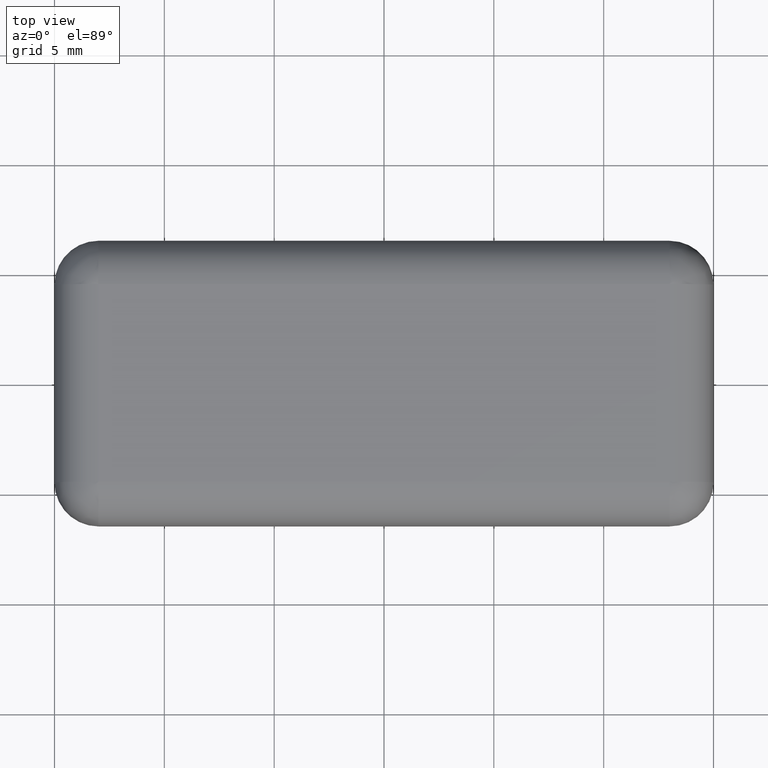
[diagram: clean part render]
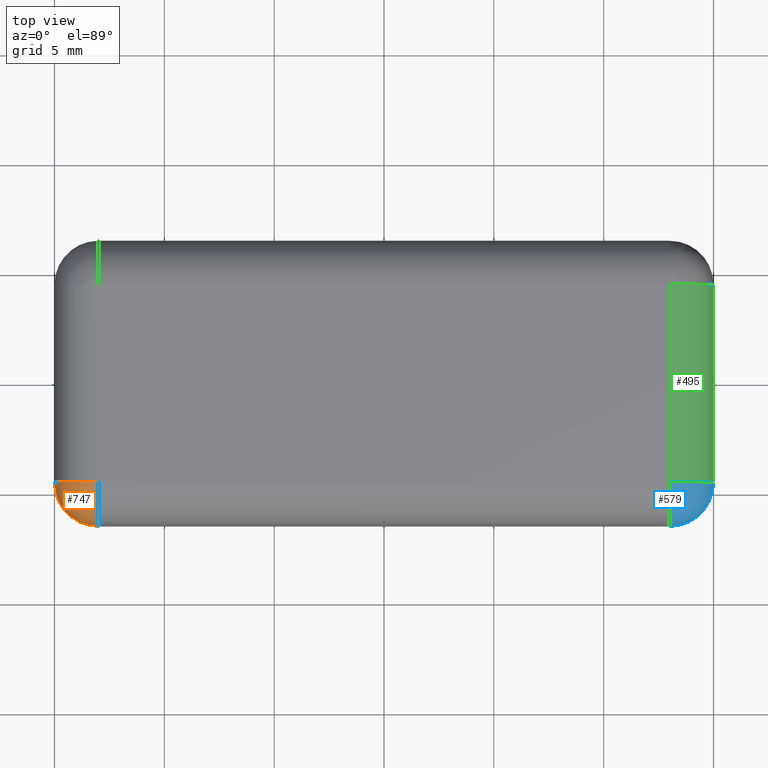
[diagram: same view with three faces highlighted in distinct colors, each labeled with its STEP entity id]
A machine part, top view with three faces highlighted in distinct colors.
Their STEP definitions:

[orange] entity #747 — the highlighted face is a freeform B-spline surface patch.
#7=CARTESIAN_POINT('',(-12.999999999999879,-4.500000000000000,2.300000000000000));
#8=VERTEX_POINT('',#7);
#265=CARTESIAN_POINT('',(-14.999999999999879,-4.500000000000000,0.300000000000000));
#266=VERTEX_POINT('',#265);
#267=CARTESIAN_POINT('',(-12.999999999999879,-6.500000000000000,0.300000000000000));
#268=VERTEX_POINT('',#267);
#269=CARTESIAN_POINT('',(-12.999999999999879,-4.500000000000000,0.300000000000000));
#270=DIRECTION('',(0.0,0.0,1.0));
#271=DIRECTION('',(0.0,-1.0,0.0));
#272=AXIS2_PLACEMENT_3D('',#269,#270,#271);
#273=CIRCLE('',#272,2.0);
#274=EDGE_CURVE('',#266,#268,#273,.T.);
#374=CARTESIAN_POINT('',(-12.999999999999879,-4.500000000000000,0.300000000000000));
#375=DIRECTION('',(0.0,-1.0,0.0));
#376=DIRECTION('',(-1.0,0.0,5.551115E-017));
#377=AXIS2_PLACEMENT_3D('',#374,#375,#376);
#378=CIRCLE('',#377,2.0);
#379=EDGE_CURVE('',#8,#266,#378,.T.);
#448=CARTESIAN_POINT('',(-12.999999999999879,-4.500000000000000,0.300000000000000));
#449=DIRECTION('',(1.0,0.0,0.0));
#450=DIRECTION('',(0.0,-1.0,5.551115E-017));
#451=AXIS2_PLACEMENT_3D('',#448,#449,#450);
#452=CIRCLE('',#451,2.0);
#453=EDGE_CURVE('',#8,#268,#452,.T.);
#664=CARTESIAN_POINT('',(-12.999999999999879,-4.500000000000000,2.300000000000000));
#665=CARTESIAN_POINT('',(-12.999999999999879,-4.500000000000000,2.300000000000000));
#666=CARTESIAN_POINT('',(-12.999999999999881,-4.500000000000000,2.300000000000000));
#667=CARTESIAN_POINT('',(-12.999999999999876,-4.499999999999999,2.299999999999999));
#668=CARTESIAN_POINT('',(-12.999999999999886,-4.500000000000001,2.300000000000000));
#669=CARTESIAN_POINT('',(-12.999999999999879,-4.500000000000000,2.300000000000000));
#670=CARTESIAN_POINT('',(-12.999999999999879,-4.500000000000000,2.300000000000000));
#671=CARTESIAN_POINT('',(-13.065423565769770,-4.500000000000000,2.299999999999999));
#672=CARTESIAN_POINT('',(-13.059997664538463,-4.505426460326894,2.300000453920654));
#673=CARTESIAN_POINT('',(-13.049143002019386,-4.516328993763035,2.300002385769376));
#674=CARTESIAN_POINT('',(-13.032774361357676,-4.532774361357801,2.300003555523811));
#675=CARTESIAN_POINT('',(-13.016328993762921,-4.549143002019507,2.300002385769376));
#676=CARTESIAN_POINT('',(-13.005426460326772,-4.559997664538583,2.300000453920656));
#677=CARTESIAN_POINT('',(-12.999999999999879,-4.565423565769891,2.300000000000001));
#678=CARTESIAN_POINT('',(-13.196753935604393,-4.499999999999999,2.293541209028191));
#679=CARTESIAN_POINT('',(-13.180344225089838,-4.516406829329166,2.294622280497522));
#680=CARTESIAN_POINT('',(-13.147527305120246,-4.549197959205632,2.296241293834771));
#681=CARTESIAN_POINT('',(-13.098344225327970,-4.598344225328102,2.297050195276508));
#682=CARTESIAN_POINT('',(-13.049197959205516,-4.647527305120370,2.296241293834771));
#683=CARTESIAN_POINT('',(-13.016406829329046,-4.680344225089959,2.294622280497521));
#684=CARTESIAN_POINT('',(-12.999999999999879,-4.696753935604516,2.293541209028190));
#685=CARTESIAN_POINT('',(-13.457444845403339,-4.500000000000002,2.254784155391458));
#686=CARTESIAN_POINT('',(-13.420195268760189,-4.538536273443080,2.262243085621857));
#687=CARTESIAN_POINT('',(-13.345031016592017,-4.615644857474894,2.273453728430770));
#688=CARTESIAN_POINT('',(-13.230831085410147,-4.730831085410262,2.279064616325387));
#689=CARTESIAN_POINT('',(-13.115644857474779,-4.845031016592138,2.273453728430771));
#690=CARTESIAN_POINT('',(-13.038536273442960,-4.920195268760311,2.262243085621858));
#691=CARTESIAN_POINT('',(-12.999999999999881,-4.957444845403460,2.254784155391458));
#692=CARTESIAN_POINT('',(-13.911269959842258,-4.499999999999998,2.116522979621471));
#693=CARTESIAN_POINT('',(-13.842108322795054,-4.579285305438411,2.145813898068745));
#694=CARTESIAN_POINT('',(-13.698614438266663,-4.738029025944689,2.189966036670723));
#695=CARTESIAN_POINT('',(-13.472139321551360,-4.972139321551490,2.212096054712062));
#696=CARTESIAN_POINT('',(-13.238029025944574,-5.198614438266791,2.189966036670722));
#697=CARTESIAN_POINT('',(-13.079285305438290,-5.342108322795179,2.145813898068744));
#698=CARTESIAN_POINT('',(-12.999999999999874,-5.411269959842382,2.116522979621470));
#699=CARTESIAN_POINT('',(-14.487326469838175,-4.500000000000003,1.716631820898720));
#700=CARTESIAN_POINT('',(-14.406237011464624,-4.645470102214478,1.797898286348174));
#701=CARTESIAN_POINT('',(-14.212330614062864,-4.937617342443698,1.923352542653772));
#702=CARTESIAN_POINT('',(-13.849737983433005,-5.349737983433125,1.986985818383675));
#703=CARTESIAN_POINT('',(-13.437617342443584,-5.712330614062981,1.923352542653774));
#704=CARTESIAN_POINT('',(-13.145470102214363,-5.906237011464738,1.797898286348174));
#705=CARTESIAN_POINT('',(-12.999999999999885,-5.987326469838289,1.716631820898720));
#706=CARTESIAN_POINT('',(-14.832793466402146,-4.499999999999997,1.165600782644201));
#707=CARTESIAN_POINT('',(-14.794453312197565,-4.714595861394125,1.256848347895916));
#708=CARTESIAN_POINT('',(-14.641901925898910,-5.147444550914125,1.402814264865777));
#709=CARTESIAN_POINT('',(-14.216882559811253,-5.716882559811378,1.478258450321354));
#710=CARTESIAN_POINT('',(-13.647444550913997,-6.141901925899035,1.402814264865776));
#711=CARTESIAN_POINT('',(-13.214595861393997,-6.294453312197689,1.256848347895916));
#712=CARTESIAN_POINT('',(-12.999999999999877,-6.332793466402271,1.165600782644201));
#713=CARTESIAN_POINT('',(-14.956005886180133,-4.500000000000002,0.750211309209944));
#714=CARTESIAN_POINT('',(-14.944956999088824,-4.747477651187074,0.805652908600539));
#715=CARTESIAN_POINT('',(-14.826586416565604,-5.247560914114287,0.895273656900097));
#716=CARTESIAN_POINT('',(-14.386217743852953,-5.886217743853067,0.941859661578889));
#717=CARTESIAN_POINT('',(-13.747560914114167,-6.326586416565728,0.895273656900098));
#718=CARTESIAN_POINT('',(-13.247477651186959,-6.444956999088943,0.805652908600539));
#719=CARTESIAN_POINT('',(-12.999999999999879,-6.456005886180252,0.750211309209944));
#720=CARTESIAN_POINT('',(-14.993661319821806,-4.499999999999998,0.495223121220345));
#721=CARTESIAN_POINT('',(-14.991982559340105,-4.758252333117635,0.520664188858249));
#722=CARTESIAN_POINT('',(-14.885698245773250,-5.280340307557595,0.561919473413235));
#723=CARTESIAN_POINT('',(-14.441235976494536,-5.941235976494662,0.583401434977066));
#724=CARTESIAN_POINT('',(-13.780340307557482,-6.385698245773376,0.561919473413235));
#725=CARTESIAN_POINT('',(-13.258252333117511,-6.491982559340224,0.520664188858249));
#726=CARTESIAN_POINT('',(-12.999999999999879,-6.493661319821928,0.495223121220345));
#727=CARTESIAN_POINT('',(-14.999999999999877,-4.500000000000000,0.365423565769891));
#728=CARTESIAN_POINT('',(-15.000002776736681,-4.760091329829997,0.373827648895719));
#729=CARTESIAN_POINT('',(-14.895937341933307,-5.286020490503399,0.387462853122221));
#730=CARTESIAN_POINT('',(-14.450827323400231,-5.950827323400354,0.394563633378272));
#731=CARTESIAN_POINT('',(-13.786020490503283,-6.395937341933427,0.387462853122221));
#732=CARTESIAN_POINT('',(-13.260091329829876,-6.500002776736805,0.373827648895719));
#733=CARTESIAN_POINT('',(-12.999999999999879,-6.500000000000000,0.365423565769891));
#734=CARTESIAN_POINT('',(-14.999999999999879,-4.500000000000000,0.300000000000000));
#735=CARTESIAN_POINT('',(-14.999999999999879,-4.760120429354838,0.300000000000000));
#736=CARTESIAN_POINT('',(-14.895922447768321,-5.286055634686549,0.300000000000000));
#737=CARTESIAN_POINT('',(-14.450825822945774,-5.950825822945895,0.300000000000000));
#738=CARTESIAN_POINT('',(-13.786055634686434,-6.395922447768443,0.300000000000000));
#739=CARTESIAN_POINT('',(-13.260120429354718,-6.500000000000000,0.300000000000000));
#740=CARTESIAN_POINT('',(-12.999999999999879,-6.500000000000000,0.300000000000000));
#741=B_SPLINE_SURFACE_WITH_KNOTS('',3,3,((#664,#671,#678,#685,#692,#699,#706,#713,#720,#727,#734),(#665,#672,#679,#686,#693,#700,#707,#714,#721,#728,#735),(#666,#673,#680,#687,#694,#701,#708,#715,#722,#729,#736),(#667,#674,#681,#688,#695,#702,#709,#716,#723,#730,#737),(#668,#675,#682,#689,#696,#703,#710,#717,#724,#731,#738),(#669,#676,#683,#690,#697,#704,#711,#718,#725,#732,#739),(#670,#677,#684,#691,#698,#705,#712,#719,#726,#733,#740)),.UNSPECIFIED.,.F.,.F.,.U.,(4,1,1,1,4),(4,1,1,1,1,1,1,1,4),(0.0,0.456884819279444,0.913769638558888,1.370654457838333,1.827539277117777),(0.0,0.168450816328602,0.337531680241882,0.679863139932531,1.399784191480694,2.210909377927191,2.661173399679213,2.894682586365700,3.130782840615567),.UNSPECIFIED.);
#742=ORIENTED_EDGE('',*,*,#453,.F.);
#743=ORIENTED_EDGE('',*,*,#379,.T.);
#744=ORIENTED_EDGE('',*,*,#274,.T.);
#745=EDGE_LOOP('',(#742,#743,#744));
#746=FACE_OUTER_BOUND('',#745,.T.);
#747=ADVANCED_FACE('',(#746),#741,.F.);

[blue] entity #579 — the highlighted face is a freeform B-spline surface patch.
#9=CARTESIAN_POINT('',(13.000000000000110,-4.500000000000000,2.300000000000000));
#10=VERTEX_POINT('',#9);
#329=CARTESIAN_POINT('',(15.000000000000110,-4.500000000000000,0.300000000000000));
#330=VERTEX_POINT('',#329);
#337=CARTESIAN_POINT('',(13.000000000000110,-6.500000000000000,0.300000000000000));
#338=VERTEX_POINT('',#337);
#339=CARTESIAN_POINT('',(13.000000000000110,-4.500000000000000,0.300000000000000));
#340=DIRECTION('',(0.0,0.0,1.0));
#341=DIRECTION('',(1.0,0.0,0.0));
#342=AXIS2_PLACEMENT_3D('',#339,#340,#341);
#343=CIRCLE('',#342,2.0);
#344=EDGE_CURVE('',#338,#330,#343,.T.);
#456=CARTESIAN_POINT('',(13.000000000000110,-4.500000000000000,0.300000000000000));
#457=DIRECTION('',(1.0,0.0,0.0));
#458=DIRECTION('',(0.0,-1.0,5.551115E-017));
#459=AXIS2_PLACEMENT_3D('',#456,#457,#458);
#460=CIRCLE('',#459,2.0);
#461=EDGE_CURVE('',#10,#338,#460,.T.);
#472=CARTESIAN_POINT('',(13.000000000000110,-4.500000000000000,0.300000000000000));
#473=DIRECTION('',(0.0,1.0,0.0));
#474=DIRECTION('',(1.0,0.0,5.551115E-017));
#475=AXIS2_PLACEMENT_3D('',#472,#473,#474);
#476=CIRCLE('',#475,2.0);
#477=EDGE_CURVE('',#10,#330,#476,.T.);
#496=CARTESIAN_POINT('',(13.000000000000110,-4.500000000000000,2.300000000000000));
#497=CARTESIAN_POINT('',(13.000000000000110,-4.500000000000000,2.300000000000000));
#498=CARTESIAN_POINT('',(13.000000000000115,-4.500000000000002,2.300000000000001));
#499=CARTESIAN_POINT('',(13.000000000000110,-4.500000000000000,2.300000000000000));
#500=CARTESIAN_POINT('',(13.000000000000110,-4.500000000000000,2.300000000000000));
#501=CARTESIAN_POINT('',(13.000000000000110,-4.499999999999999,2.300000000000000));
#502=CARTESIAN_POINT('',(13.000000000000110,-4.500000000000000,2.300000000000000));
#503=CARTESIAN_POINT('',(13.000000000000110,-4.565423565769891,2.300000000000001));
#504=CARTESIAN_POINT('',(13.005426460327003,-4.559997664538583,2.300000453920655));
#505=CARTESIAN_POINT('',(13.016328993763150,-4.549143002019507,2.300002385769371));
#506=CARTESIAN_POINT('',(13.032774361357911,-4.532774361357802,2.300003555523812));
#507=CARTESIAN_POINT('',(13.049143002019617,-4.516328993763034,2.300002385769375));
#508=CARTESIAN_POINT('',(13.059997664538693,-4.505426460326894,2.300000453920658));
#509=CARTESIAN_POINT('',(13.065423565770001,-4.500000000000000,2.300000000000004));
#510=CARTESIAN_POINT('',(13.000000000000110,-4.696753935604516,2.293541209028190));
#511=CARTESIAN_POINT('',(13.016406829329274,-4.680344225089959,2.294622280497522));
#512=CARTESIAN_POINT('',(13.049197959205747,-4.647527305120372,2.296241293834774));
#513=CARTESIAN_POINT('',(13.098344225328203,-4.598344225328100,2.297050195276507));
#514=CARTESIAN_POINT('',(13.147527305120487,-4.549197959205634,2.296241293834771));
#515=CARTESIAN_POINT('',(13.180344225090071,-4.516406829329166,2.294622280497520));
#516=CARTESIAN_POINT('',(13.196753935604628,-4.499999999999999,2.293541209028189));
#517=CARTESIAN_POINT('',(13.000000000000114,-4.957444845403460,2.254784155391458));
#518=CARTESIAN_POINT('',(13.038536273443192,-4.920195268760311,2.262243085621857));
#519=CARTESIAN_POINT('',(13.115644857475006,-4.845031016592134,2.273453728430769));
#520=CARTESIAN_POINT('',(13.230831085410387,-4.730831085410267,2.279064616325389));
#521=CARTESIAN_POINT('',(13.345031016592234,-4.615644857474893,2.273453728430769));
#522=CARTESIAN_POINT('',(13.420195268760423,-4.538536273443080,2.262243085621859));
#523=CARTESIAN_POINT('',(13.457444845403568,-4.500000000000002,2.254784155391459));
#524=CARTESIAN_POINT('',(13.000000000000105,-5.411269959842382,2.116522979621470));
#525=CARTESIAN_POINT('',(13.079285305438521,-5.342108322795179,2.145813898068746));
#526=CARTESIAN_POINT('',(13.238029025944801,-5.198614438266795,2.189966036670724));
#527=CARTESIAN_POINT('',(13.472139321551586,-4.972139321551488,2.212096054712062));
#528=CARTESIAN_POINT('',(13.698614438266908,-4.738029025944691,2.189966036670723));
#529=CARTESIAN_POINT('',(13.842108322795283,-4.579285305438411,2.145813898068744));
#530=CARTESIAN_POINT('',(13.911269959842492,-4.499999999999998,2.116522979621470));
#531=CARTESIAN_POINT('',(13.000000000000112,-5.987326469838288,1.716631820898719));
#532=CARTESIAN_POINT('',(13.145470102214585,-5.906237011464735,1.797898286348173));
#533=CARTESIAN_POINT('',(13.437617342443811,-5.712330614062974,1.923352542653772));
#534=CARTESIAN_POINT('',(13.849737983433240,-5.349737983433126,1.986985818383675));
#535=CARTESIAN_POINT('',(14.212330614063081,-4.937617342443696,1.923352542653772));
#536=CARTESIAN_POINT('',(14.406237011464849,-4.645470102214476,1.797898286348174));
#537=CARTESIAN_POINT('',(14.487326469838395,-4.500000000000001,1.716631820898720));
#538=CARTESIAN_POINT('',(13.000000000000108,-6.332793466402271,1.165600782644201));
#539=CARTESIAN_POINT('',(13.214595861394233,-6.294453312197689,1.256848347895917));
#540=CARTESIAN_POINT('',(13.647444550914235,-6.141901925899036,1.402814264865778));
#541=CARTESIAN_POINT('',(14.216882559811484,-5.716882559811383,1.478258450321355));
#542=CARTESIAN_POINT('',(14.641901925899148,-5.147444550914121,1.402814264865777));
#543=CARTESIAN_POINT('',(14.794453312197804,-4.714595861394125,1.256848347895917));
#544=CARTESIAN_POINT('',(14.832793466402387,-4.500000000000000,1.165600782644201));
#545=CARTESIAN_POINT('',(13.000000000000114,-6.456005886180253,0.750211309209944));
#546=CARTESIAN_POINT('',(13.247477651187189,-6.444956999088944,0.805652908600539));
#547=CARTESIAN_POINT('',(13.747560914114402,-6.326586416565727,0.895273656900097));
#548=CARTESIAN_POINT('',(14.386217743853182,-5.886217743853065,0.941859661578889));
#549=CARTESIAN_POINT('',(14.826586416565835,-5.247560914114290,0.895273656900097));
#550=CARTESIAN_POINT('',(14.944956999089053,-4.747477651187076,0.805652908600539));
#551=CARTESIAN_POINT('',(14.956005886180360,-4.500000000000001,0.750211309209944));
#552=CARTESIAN_POINT('',(13.000000000000108,-6.493661319821928,0.495223121220345));
#553=CARTESIAN_POINT('',(13.258252333117746,-6.491982559340226,0.520664188858249));
#554=CARTESIAN_POINT('',(13.780340307557715,-6.385698245773376,0.561919473413236));
#555=CARTESIAN_POINT('',(14.441235976494772,-5.941235976494666,0.583401434977066));
#556=CARTESIAN_POINT('',(14.885698245773487,-5.280340307557593,0.561919473413235));
#557=CARTESIAN_POINT('',(14.991982559340336,-4.758252333117635,0.520664188858249));
#558=CARTESIAN_POINT('',(14.993661319822042,-4.500000000000000,0.495223121220345));
#559=CARTESIAN_POINT('',(13.000000000000110,-6.500000000000000,0.365423565769891));
#560=CARTESIAN_POINT('',(13.260091329830107,-6.500002776736806,0.373827648895719));
#561=CARTESIAN_POINT('',(13.786020490503516,-6.395937341933427,0.387462853122221));
#562=CARTESIAN_POINT('',(14.450827323400462,-5.950827323400355,0.394563633378272));
#563=CARTESIAN_POINT('',(14.895937341933546,-5.286020490503401,0.387462853122221));
#564=CARTESIAN_POINT('',(15.000002776736917,-4.760091329829998,0.373827648895719));
#565=CARTESIAN_POINT('',(15.000000000000114,-4.500000000000000,0.365423565769891));
#566=CARTESIAN_POINT('',(13.000000000000110,-6.500000000000000,0.300000000000000));
#567=CARTESIAN_POINT('',(13.260120429354949,-6.500000000000000,0.300000000000000));
#568=CARTESIAN_POINT('',(13.786055634686665,-6.395922447768443,0.300000000000000));
#569=CARTESIAN_POINT('',(14.450825822946005,-5.950825822945896,0.300000000000000));
#570=CARTESIAN_POINT('',(14.895922447768553,-5.286055634686550,0.300000000000000));
#571=CARTESIAN_POINT('',(15.000000000000110,-4.760120429354838,0.300000000000000));
#572=CARTESIAN_POINT('',(15.000000000000110,-4.500000000000000,0.300000000000000));
#573=B_SPLINE_SURFACE_WITH_KNOTS('',3,3,((#496,#503,#510,#517,#524,#531,#538,#545,#552,#559,#566),(#497,#504,#511,#518,#525,#532,#539,#546,#553,#560,#567),(#498,#505,#512,#519,#526,#533,#540,#547,#554,#561,#568),(#499,#506,#513,#520,#527,#534,#541,#548,#555,#562,#569),(#500,#507,#514,#521,#528,#535,#542,#549,#556,#563,#570),(#501,#508,#515,#522,#529,#536,#543,#550,#557,#564,#571),(#502,#509,#516,#523,#530,#537,#544,#551,#558,#565,#572)),.UNSPECIFIED.,.F.,.F.,.U.,(4,1,1,1,4),(4,1,1,1,1,1,1,1,4),(0.0,0.456884819279444,0.913769638558888,1.370654457838332,1.827539277117777),(0.0,0.168450816328602,0.337531680241882,0.679863139932531,1.399784191480694,2.210909377927192,2.661173399679213,2.894682586365700,3.130782840615567),.UNSPECIFIED.);
#574=ORIENTED_EDGE('',*,*,#477,.F.);
#575=ORIENTED_EDGE('',*,*,#461,.T.);
#576=ORIENTED_EDGE('',*,*,#344,.T.);
#577=EDGE_LOOP('',(#574,#575,#576));
#578=FACE_OUTER_BOUND('',#577,.T.);
#579=ADVANCED_FACE('',(#578),#573,.F.);

[green] entity #495 — the highlighted cylindrical surface (partial cylindrical patch) has radius 2 mm, axis along (0, -1, 0).
#9=CARTESIAN_POINT('',(13.000000000000110,-4.500000000000000,2.300000000000000));
#10=VERTEX_POINT('',#9);
#17=CARTESIAN_POINT('',(13.000000000000110,4.500000000000000,2.300000000000000));
#18=VERTEX_POINT('',#17);
#19=CARTESIAN_POINT('',(13.000000000000110,-4.500000000000000,2.300000000000000));
#20=DIRECTION('',(0.0,1.0,0.0));
#21=VECTOR('',#20,9.0);
#22=LINE('',#19,#21);
#23=EDGE_CURVE('',#10,#18,#22,.T.);
#305=CARTESIAN_POINT('',(15.000000000000110,4.500000000000000,0.300000000000000));
#306=VERTEX_POINT('',#305);
#329=CARTESIAN_POINT('',(15.000000000000110,-4.500000000000000,0.300000000000000));
#330=VERTEX_POINT('',#329);
#467=CARTESIAN_POINT('',(13.000000000000110,-6.500000000000000,0.300000000000000));
#468=DIRECTION('',(0.0,-1.0,0.0));
#469=DIRECTION('',(1.0,0.0,5.551115E-017));
#470=AXIS2_PLACEMENT_3D('',#467,#468,#469);
#471=CYLINDRICAL_SURFACE('',#470,2.0);
#472=CARTESIAN_POINT('',(13.000000000000110,-4.500000000000000,0.300000000000000));
#473=DIRECTION('',(0.0,1.0,0.0));
#474=DIRECTION('',(1.0,0.0,5.551115E-017));
#475=AXIS2_PLACEMENT_3D('',#472,#473,#474);
#476=CIRCLE('',#475,2.0);
#477=EDGE_CURVE('',#10,#330,#476,.T.);
#478=ORIENTED_EDGE('',*,*,#477,.T.);
#479=CARTESIAN_POINT('',(15.000000000000110,-4.500000000000000,0.300000000000000));
#480=DIRECTION('',(0.0,1.0,0.0));
#481=VECTOR('',#480,9.0);
#482=LINE('',#479,#481);
#483=EDGE_CURVE('',#330,#306,#482,.T.);
#484=ORIENTED_EDGE('',*,*,#483,.T.);
#485=CARTESIAN_POINT('',(13.000000000000110,4.500000000000000,0.300000000000000));
#486=DIRECTION('',(0.0,1.0,0.0));
#487=DIRECTION('',(1.0,0.0,5.551115E-017));
#488=AXIS2_PLACEMENT_3D('',#485,#486,#487);
#489=CIRCLE('',#488,2.0);
#490=EDGE_CURVE('',#18,#306,#489,.T.);
#491=ORIENTED_EDGE('',*,*,#490,.F.);
#492=ORIENTED_EDGE('',*,*,#23,.F.);
#493=EDGE_LOOP('',(#478,#484,#491,#492));
#494=FACE_OUTER_BOUND('',#493,.T.);
#495=ADVANCED_FACE('',(#494),#471,.T.);